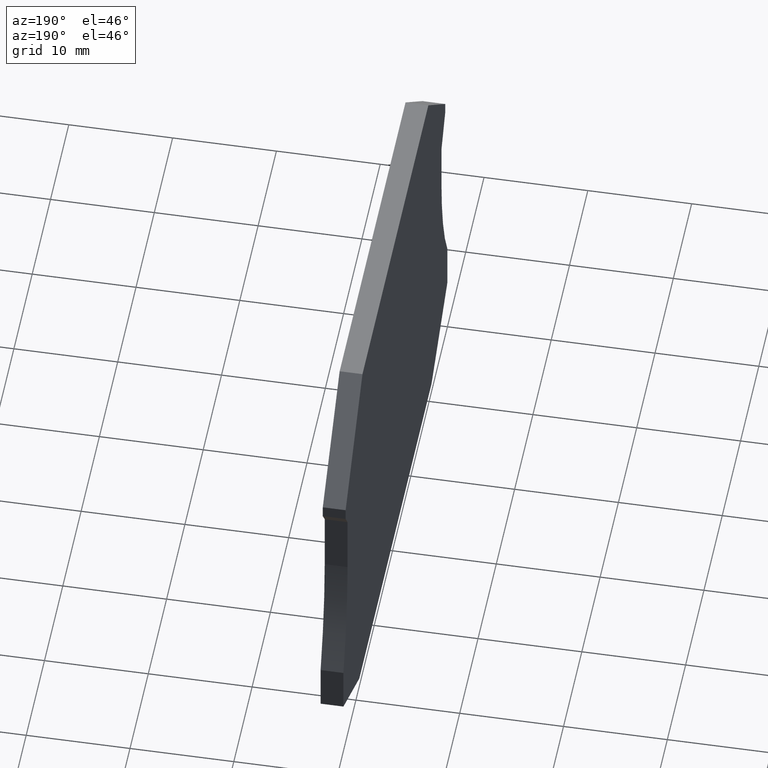
[diagram: clean part render]
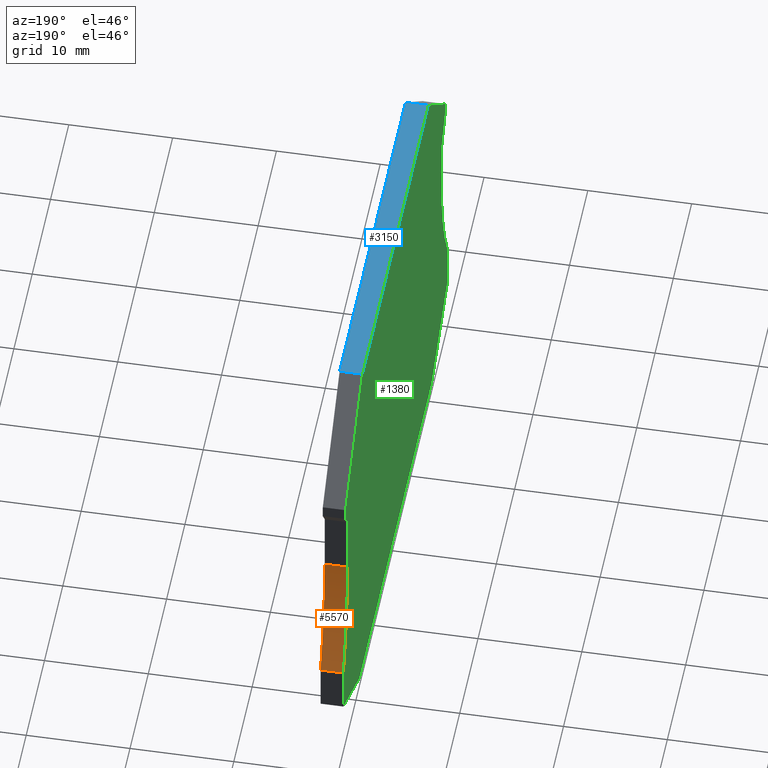
[diagram: same view with three faces highlighted in distinct colors, each labeled with its STEP entity id]
A machine part, auxiliary view with three faces highlighted in distinct colors.
Their STEP definitions:

[orange] entity #5570 — the highlighted cylindrical surface (partial cylindrical patch) has radius 34 mm, axis along (1, -0, 0).
#360=CARTESIAN_POINT('',(62.7296808260511,-48.6508242110641,
-1.74971148680925E-13));
#370=VERTEX_POINT('',#360);
#400=CARTESIAN_POINT('',(94.4796808260507,-36.487868155893,
-1.37223565843669E-13));
#410=DIRECTION('',(0.,0.,1.));
#420=DIRECTION('',(1.,0.,0.));
#430=AXIS2_PLACEMENT_3D('',#400,#410,#420);
#440=CIRCLE('',#430,34.);
#450=CARTESIAN_POINT('',(60.4796808260507,-36.487868155893,
-1.74971148680925E-13));
#460=VERTEX_POINT('',#450);
#470=EDGE_CURVE('',#460,#370,#440,.T.);
#5070=CARTESIAN_POINT('',(60.4796808260507,-36.487868155893,
-3.81916720471054E-14));
#5080=DIRECTION('',(0.,0.,1.));
#5090=VECTOR('',#5080,1.);
#5100=LINE('',#5070,#5090);
#5110=CARTESIAN_POINT('',(60.4796808260507,-36.487868155893,
2.19999999999998));
#5120=VERTEX_POINT('',#5110);
#5130=EDGE_CURVE('',#460,#5120,#5100,.T.);
#5330=CARTESIAN_POINT('',(94.4796808260507,-36.487868155893,
2.19999999999998));
#5340=DIRECTION('',(0.,0.,1.));
#5350=DIRECTION('',(1.,0.,0.));
#5360=AXIS2_PLACEMENT_3D('',#5330,#5340,#5350);
#5370=CYLINDRICAL_SURFACE('',#5360,34.);
#5380=ORIENTED_EDGE('',*,*,#5130,.T.);
#5390=ORIENTED_EDGE('',*,*,#470,.F.);
#5400=CARTESIAN_POINT('',(62.7296808260511,-48.6508242110641,
2.19999999999998));
#5410=DIRECTION('',(0.,0.,1.));
#5420=VECTOR('',#5410,1.);
#5430=LINE('',#5400,#5420);
#5440=CARTESIAN_POINT('',(62.7296808260511,-48.6508242110641,
2.19999999999998));
#5450=VERTEX_POINT('',#5440);
#5460=EDGE_CURVE('',#370,#5450,#5430,.T.);
#5470=ORIENTED_EDGE('',*,*,#5460,.F.);
#5480=CARTESIAN_POINT('',(94.4796808260507,-36.487868155893,
2.19999999999998));
#5490=DIRECTION('',(0.,0.,1.));
#5500=DIRECTION('',(1.,0.,0.));
#5510=AXIS2_PLACEMENT_3D('',#5480,#5490,#5500);
#5520=CIRCLE('',#5510,34.);
#5530=EDGE_CURVE('',#5120,#5450,#5520,.T.);
#5540=ORIENTED_EDGE('',*,*,#5530,.T.);
#5550=EDGE_LOOP('',(#5540,#5470,#5390,#5380));
#5560=FACE_OUTER_BOUND('',#5550,.T.);
#5570=ADVANCED_FACE('',(#5560),#5370,.F.);

[blue] entity #3150 — the highlighted planar face has unit normal (0, 0, -1).
#770=CARTESIAN_POINT('',(52.3296808260488,-18.4500000000048,
1.58078386397419E-14));
#780=VERTEX_POINT('',#770);
#810=CARTESIAN_POINT('',(-1.4210854715202E-14,-18.4500000000048,
5.3148671933448E-14));
#820=DIRECTION('',(-1.,1.61097812794554E-28,1.71518932033358E-42));
#830=VECTOR('',#820,1.);
#840=LINE('',#810,#830);
#850=CARTESIAN_POINT('',(16.3296808260526,-18.4500000000048,
1.58078386397419E-14));
#860=VERTEX_POINT('',#850);
#870=EDGE_CURVE('',#780,#860,#840,.T.);
#2660=CARTESIAN_POINT('',(52.3296808260488,-18.4500000000048,
-2.8421709430404E-14));
#2670=DIRECTION('',(-1.05655906439322E-14,1.05655906439346E-14,-1.));
#2680=VECTOR('',#2670,1.);
#2690=LINE('',#2660,#2680);
#2700=CARTESIAN_POINT('',(52.3296808260488,-18.4500000000048,
2.19999999999998));
#2710=VERTEX_POINT('',#2700);
#2720=EDGE_CURVE('',#2710,#780,#2690,.T.);
#2920=CARTESIAN_POINT('',(34.1296808260507,-18.4500000000048,
1.60000000000014));
#2930=DIRECTION('',(1.61097812794554E-28,-1.,-1.05655906439346E-14));
#2940=DIRECTION('',(-1.,0.,-1.52474024617862E-14));
#2950=AXIS2_PLACEMENT_3D('',#2920,#2930,#2940);
#2960=PLANE('',#2950);
#2970=CARTESIAN_POINT('',(16.3296808260526,-18.4500000000048,
-2.8421709430404E-14));
#2980=DIRECTION('',(1.05655906439322E-14,1.05655906439346E-14,-1.));
#2990=VECTOR('',#2980,1.);
#3000=LINE('',#2970,#2990);
#3010=CARTESIAN_POINT('',(16.3296808260526,-18.4500000000048,
2.19999999999998));
#3020=VERTEX_POINT('',#3010);
#3030=EDGE_CURVE('',#3020,#860,#3000,.T.);
#3040=ORIENTED_EDGE('',*,*,#3030,.F.);
#3050=ORIENTED_EDGE('',*,*,#870,.T.);
#3060=ORIENTED_EDGE('',*,*,#2720,.T.);
#3070=CARTESIAN_POINT('',(47.920285,-18.4500000000048,2.19999999999998))
;
#3080=DIRECTION('',(1.,-1.61097812794554E-28,0.));
#3090=VECTOR('',#3080,1.);
#3100=LINE('',#3070,#3090);
#3110=EDGE_CURVE('',#3020,#2710,#3100,.T.);
#3120=ORIENTED_EDGE('',*,*,#3110,.T.);
#3130=EDGE_LOOP('',(#3120,#3060,#3050,#3040));
#3140=FACE_OUTER_BOUND('',#3130,.T.);
#3150=ADVANCED_FACE('',(#3140),#2960,.F.);

[green] entity #1380 — the highlighted planar face has unit normal (1, -0, 0).
#10=CARTESIAN_POINT('',(72.2463843677915,-62.2300024000076,
-4.46753745109163E-13));
#20=DIRECTION('',(0.,-1.05655906439346E-14,1.));
#30=DIRECTION('',(-1.,-1.61097812794554E-28,-1.70209354362047E-42));
#40=AXIS2_PLACEMENT_3D('',#10,#20,#30);
#50=PLANE('',#40);
#60=CARTESIAN_POINT('',(47.920285,-77.4852539852205,
-6.07934488528757E-13));
#70=DIRECTION('',(-0.866025403784439,0.5,5.27355936696949E-15));
#80=VECTOR('',#70,1.);
#90=LINE('',#60,#80);
#100=CARTESIAN_POINT('',(14.603847801119,-58.2500000000073,
-4.05057980869241E-13));
#110=VERTEX_POINT('',#100);
#120=CARTESIAN_POINT('',(5.92968082605108,-53.2419673619561,
-3.51789846203769E-13));
#130=VERTEX_POINT('',#120);
#140=EDGE_CURVE('',#110,#130,#90,.T.);
#150=ORIENTED_EDGE('',*,*,#140,.T.);
#160=CARTESIAN_POINT('',(47.920285,-58.2500000000073,
-1.71052260616391E-13));
#170=DIRECTION('',(-1.,0.,5.25980973659004E-15));
#180=VECTOR('',#170,1.);
#190=LINE('',#160,#180);
#200=CARTESIAN_POINT('',(54.0555138509831,-58.2500000000073,
-4.04768099745673E-13));
#210=VERTEX_POINT('',#200);
#220=EDGE_CURVE('',#210,#110,#190,.T.);
#230=ORIENTED_EDGE('',*,*,#220,.T.);
#240=CARTESIAN_POINT('',(-1.4210854715202E-14,-89.458965473056,
-6.97102989304098E-13));
#250=DIRECTION('',(-0.866025403784439,-0.5,-5.27355936696949E-15));
#260=VECTOR('',#250,1.);
#270=LINE('',#240,#260);
#280=CARTESIAN_POINT('',(62.7296808260511,-53.2419673619561,
-3.51947784888705E-13));
#290=VERTEX_POINT('',#280);
#300=EDGE_CURVE('',#290,#210,#270,.T.);
#310=ORIENTED_EDGE('',*,*,#300,.T.);
#320=CARTESIAN_POINT('',(62.7296808260511,6.3948846218409E-14,
2.48083819314093E-13));
#330=DIRECTION('',(0.,-1.,-1.05655906439346E-14));
#340=VECTOR('',#330,1.);
#350=LINE('',#320,#340);
#360=CARTESIAN_POINT('',(62.7296808260511,-48.6508242110641,
-1.74971148680925E-13));
#370=VERTEX_POINT('',#360);
#380=EDGE_CURVE('',#370,#290,#350,.T.);
#390=ORIENTED_EDGE('',*,*,#380,.T.);
#400=CARTESIAN_POINT('',(94.4796808260507,-36.487868155893,
-1.37223565843669E-13));
#410=DIRECTION('',(0.,0.,1.));
#420=DIRECTION('',(1.,0.,0.));
#430=AXIS2_PLACEMENT_3D('',#400,#410,#420);
#440=CIRCLE('',#430,34.);
#450=CARTESIAN_POINT('',(60.4796808260507,-36.487868155893,
-1.74971148680925E-13));
#460=VERTEX_POINT('',#450);
#470=EDGE_CURVE('',#460,#370,#440,.T.);
#480=ORIENTED_EDGE('',*,*,#470,.T.);
#490=CARTESIAN_POINT('',(60.4796808260507,6.3948846218409E-14,
2.48083819314093E-13));
#500=DIRECTION('',(0.,1.,1.05655906439346E-14));
#510=VECTOR('',#500,1.);
#520=LINE('',#490,#510);
#530=CARTESIAN_POINT('',(60.4796808260507,-30.3495554070836,
-1.09896775345054E-13));
#540=VERTEX_POINT('',#530);
#550=EDGE_CURVE('',#460,#540,#520,.T.);
#560=ORIENTED_EDGE('',*,*,#550,.F.);
#570=CARTESIAN_POINT('',(81.7306683034039,6.3948846218409E-14,
2.48083819314093E-13));
#580=DIRECTION('',(-0.573576436351046,-0.819152044288992,
-8.65973959207622E-15));
#590=VECTOR('',#580,1.);
#600=LINE('',#570,#590);
#610=CARTESIAN_POINT('',(61.5296808260507,-28.8500000000043,
-9.40440903401997E-14));
#620=VERTEX_POINT('',#610);
#630=EDGE_CURVE('',#620,#540,#600,.T.);
#640=ORIENTED_EDGE('',*,*,#630,.T.);
#650=CARTESIAN_POINT('',(61.5296808260507,6.3948846218409E-14,
2.48083819314093E-13));
#660=DIRECTION('',(0.,-1.,-1.05655906439346E-14));
#670=VECTOR('',#660,1.);
#680=LINE('',#650,#670);
#690=CARTESIAN_POINT('',(61.5296808260507,-27.6500000000088,
-8.13955952844994E-14));
#700=VERTEX_POINT('',#690);
#710=EDGE_CURVE('',#700,#620,#680,.T.);
#720=ORIENTED_EDGE('',*,*,#710,.T.);
#730=CARTESIAN_POINT('',(67.7658078260404,-33.886127,
-1.47286598378007E-13));
#740=DIRECTION('',(-0.707106781186466,0.70710678118663,
7.38298311375729E-15));
#750=VECTOR('',#740,1.);
#760=LINE('',#730,#750);
#770=CARTESIAN_POINT('',(52.3296808260488,-18.4500000000048,
1.58078386397419E-14));
#780=VERTEX_POINT('',#770);
#790=EDGE_CURVE('',#700,#780,#760,.T.);
#800=ORIENTED_EDGE('',*,*,#790,.F.);
#810=CARTESIAN_POINT('',(-1.4210854715202E-14,-18.4500000000048,
5.3148671933448E-14));
#820=DIRECTION('',(-1.,1.61097812794554E-28,1.71518932033358E-42));
#830=VECTOR('',#820,1.);
#840=LINE('',#810,#830);
#850=CARTESIAN_POINT('',(16.3296808260526,-18.4500000000048,
1.58078386397419E-14));
#860=VERTEX_POINT('',#850);
#870=EDGE_CURVE('',#780,#860,#840,.T.);
#880=ORIENTED_EDGE('',*,*,#870,.F.);
#890=CARTESIAN_POINT('',(34.7796808260532,6.3948846218409E-14,
2.48083819314093E-13));
#900=DIRECTION('',(-0.707106781186466,-0.70710678118663,
-7.43849426498855E-15));
#910=VECTOR('',#900,1.);
#920=LINE('',#890,#910);
#930=CARTESIAN_POINT('',(7.12968082605067,-27.6500000000088,
-8.1682277343663E-14));
#940=VERTEX_POINT('',#930);
#950=EDGE_CURVE('',#860,#940,#920,.T.);
#960=ORIENTED_EDGE('',*,*,#950,.F.);
#970=CARTESIAN_POINT('',(7.12968082605067,6.3948846218409E-14,
2.48083819314093E-13));
#980=DIRECTION('',(0.,-1.,-1.05655906439346E-14));
#990=VECTOR('',#980,1.);
#1000=LINE('',#970,#990);
#1010=CARTESIAN_POINT('',(7.12968082605067,-28.8500000000043,
-9.40743040571737E-14));
#1020=VERTEX_POINT('',#1010);
#1030=EDGE_CURVE('',#940,#1020,#1000,.T.);
#1040=ORIENTED_EDGE('',*,*,#1030,.F.);
#1050=CARTESIAN_POINT('',(-13.0713066513026,6.3948846218409E-14,
2.48083819314093E-13));
#1060=DIRECTION('',(0.573576436351046,-0.819152044288992,
-8.65973959207622E-15));
#1070=VECTOR('',#1060,1.);
#1080=LINE('',#1050,#1070);
#1090=CARTESIAN_POINT('',(9.17968082605068,-31.7777034138257,
-1.2500721985446E-13));
#1100=VERTEX_POINT('',#1090);
#1110=EDGE_CURVE('',#1020,#1100,#1080,.T.);
#1120=ORIENTED_EDGE('',*,*,#1110,.F.);
#1130=CARTESIAN_POINT('',(9.17968082605068,6.3948846218409E-14,
2.48083819314093E-13));
#1140=DIRECTION('',(0.,-1.,-1.05655906439346E-14));
#1150=VECTOR('',#1140,1.);
#1160=LINE('',#1130,#1150);
#1170=CARTESIAN_POINT('',(9.17968082605067,-36.3500000000066,
-1.73194791841524E-13));
#1180=VERTEX_POINT('',#1170);
#1190=EDGE_CURVE('',#1100,#1180,#1160,.T.);
#1200=ORIENTED_EDGE('',*,*,#1190,.F.);
#1210=CARTESIAN_POINT('',(-15.8203191739493,-36.3500000000066,
-1.35891298214119E-13));
#1220=DIRECTION('',(0.,0.,1.));
#1230=DIRECTION('',(1.,0.,0.));
#1240=AXIS2_PLACEMENT_3D('',#1210,#1220,#1230);
#1250=CIRCLE('',#1240,25.);
#1260=CARTESIAN_POINT('',(5.92968082605108,-48.676293035627,
-3.03550800258254E-13));
#1270=VERTEX_POINT('',#1260);
#1280=EDGE_CURVE('',#1270,#1180,#1250,.T.);
#1290=ORIENTED_EDGE('',*,*,#1280,.T.);
#1300=CARTESIAN_POINT('',(5.92968082605108,-33.886127,
-1.47283960369994E-13));
#1310=DIRECTION('',(2.77555756156289E-17,1.,1.05655906439346E-14));
#1320=VECTOR('',#1310,1.);
#1330=LINE('',#1300,#1320);
#1340=EDGE_CURVE('',#130,#1270,#1330,.T.);
#1350=ORIENTED_EDGE('',*,*,#1340,.T.);
#1360=EDGE_LOOP('',(#1350,#1290,#1200,#1120,#1040,#960,#880,#800,#720,
#640,#560,#480,#390,#310,#230,#150));
#1370=FACE_OUTER_BOUND('',#1360,.T.);
#1380=ADVANCED_FACE('',(#1370),#50,.F.);